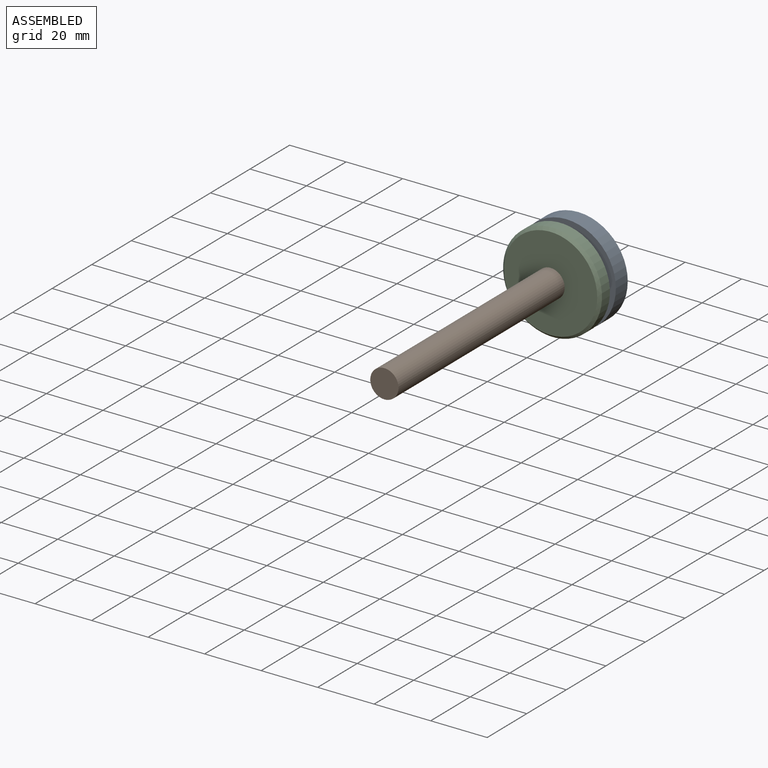
[diagram: assembled view]
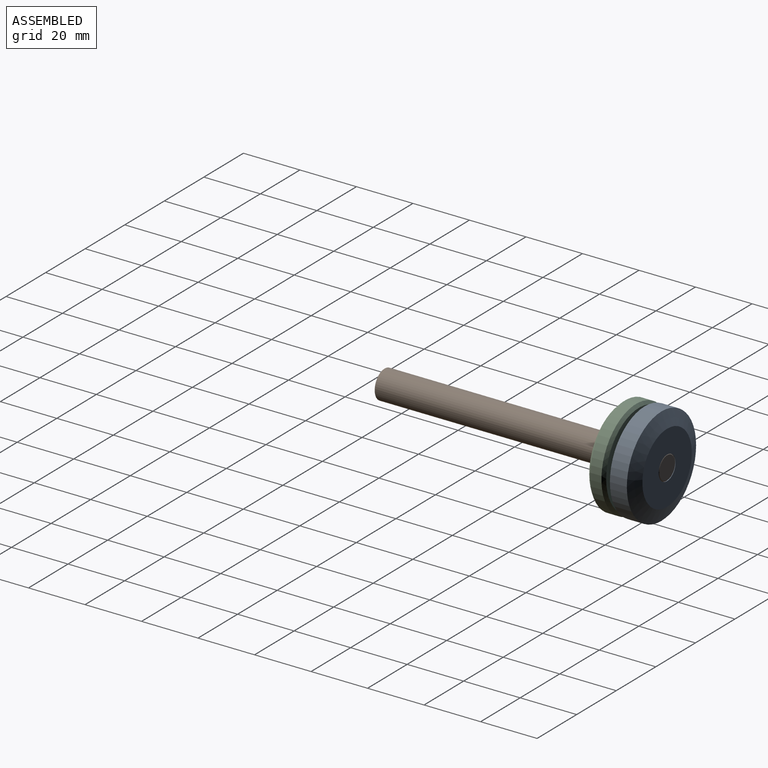
[diagram: assembled view, second angle]
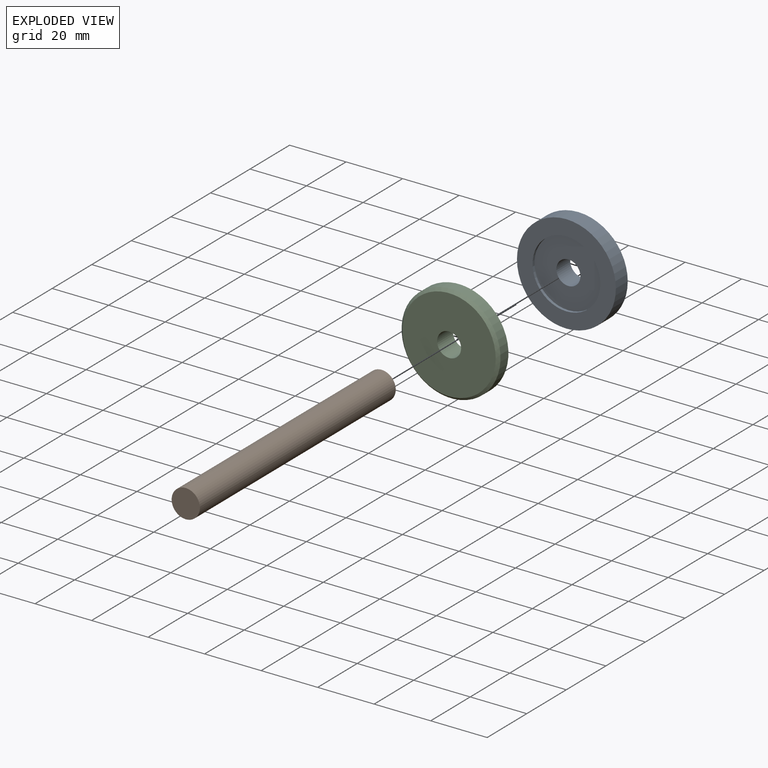
[diagram: exploded view]
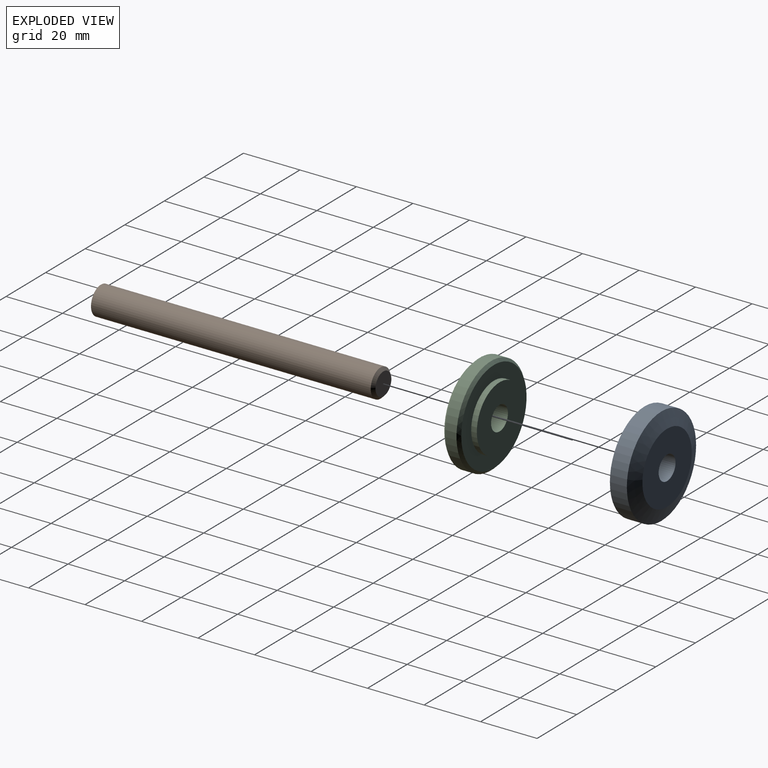
[diagram: exploded view, second angle]
ASSEMBLY  parts=3 mates=2
PART A: 7 faces, bbox 35x8x35 mm
  f0: cylinder r=17.5mm len=35mm, axis (0,-1,0), area 659.7mm2, adj f2,f5
  f1: plane 25x25mm, normal (0,1,0), area 434.1mm2, adj f5,f6
  f2: plane 35x35mm, normal (0,-1,0), area 509.7mm2, adj f0,f3
  f3: cylinder r=12mm len=24mm, axis (0,-1,0), area 75.4mm2, adj f2,f4
  f4: plane 24x24mm, normal (0,-1,0), area 395.6mm2, adj f3,f6
  f5: cone r=17.5mm half-angle=68.2deg, axis (0,-1,0), area 507.5mm2, adj f0,f1
  f6: cylinder r=4.25mm len=8.5mm, axis (0,-1,0), area 186.9mm2, adj f1,f4
PART B: 4 faces, bbox 10x100x10 mm
  f0: plane 8x8mm, normal (0,1,0), area 50.3mm2, adj f3
  f1: cylinder r=5mm len=99mm, axis (0,-1,0), area 3110.2mm2, adj f2,f3
  f2: plane 10x10mm, normal (0,-1,0), area 78.5mm2, adj f1
  f3: cone r=5mm half-angle=45deg, axis (0,-1,0), area 40mm2, adj f0,f1
PART C: 8 faces, bbox 35x8x35 mm
  f0: cylinder r=17.5mm len=35mm, axis (0,1,0), area 439.8mm2, adj f5,f6
  f1: plane 33x33mm, normal (0,-1,0), area 798.6mm2, adj f6,f7
  f2: plane 33x33mm, normal (0,1,0), area 439.8mm2, adj f3,f5
  f3: cylinder r=11.5mm len=23mm, axis (0,-1,0), area 144.5mm2, adj f2,f4
  f4: plane 23x23mm, normal (0,1,0), area 358.7mm2, adj f3,f7
  f5: cone r=17.5mm half-angle=45deg, axis (0,-1,0), area 151.1mm2, adj f0,f2
  f6: cone r=16.5mm half-angle=45deg, axis (0,1,0), area 151.1mm2, adj f0,f1
  f7: cylinder r=4.25mm len=8.5mm, axis (0,1,0), area 213.6mm2, adj f1,f4
PLACE A at identity fixed
PLACE B t=(0,8,0)mm
PLACE C rot(axis=(0,1,0),108.9deg) t=(0,-2,0)mm
MATE revolute C.f7 <-> A.f3  axis (0,1,0) through (0,0,0)mm
MATE fastened B.f1 <-> A.f6  axis (0,1,0) through (0,8,0)mm
